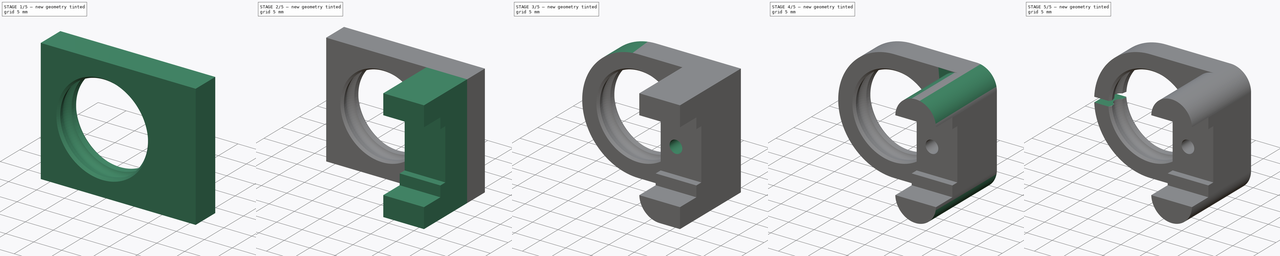
[diagram: build sequence overview — one tinted view per stage of 5, left to right]
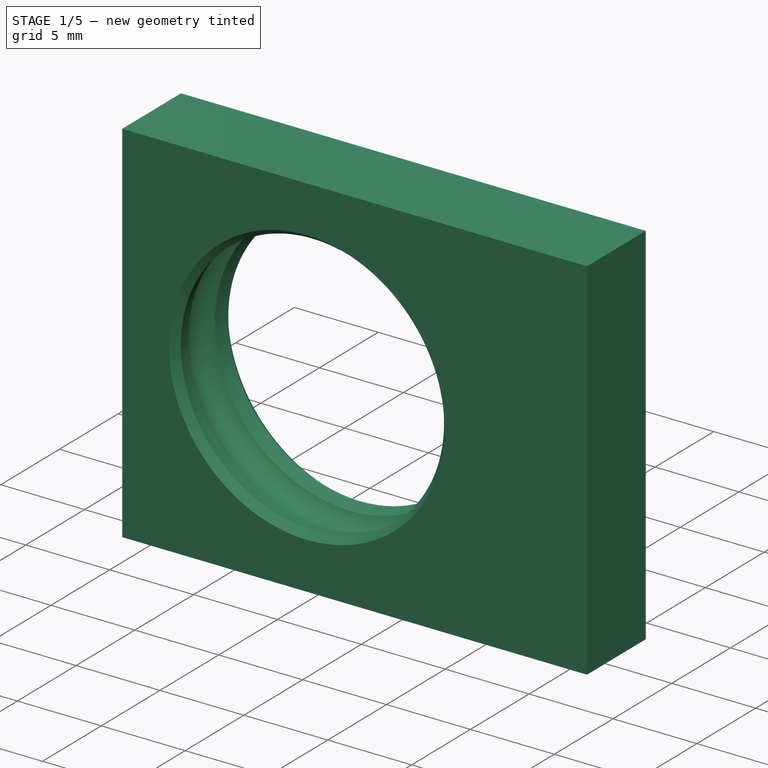
[diagram: stage 1 of 5 — iso view after this stage's code; geometry added in this stage tinted green]
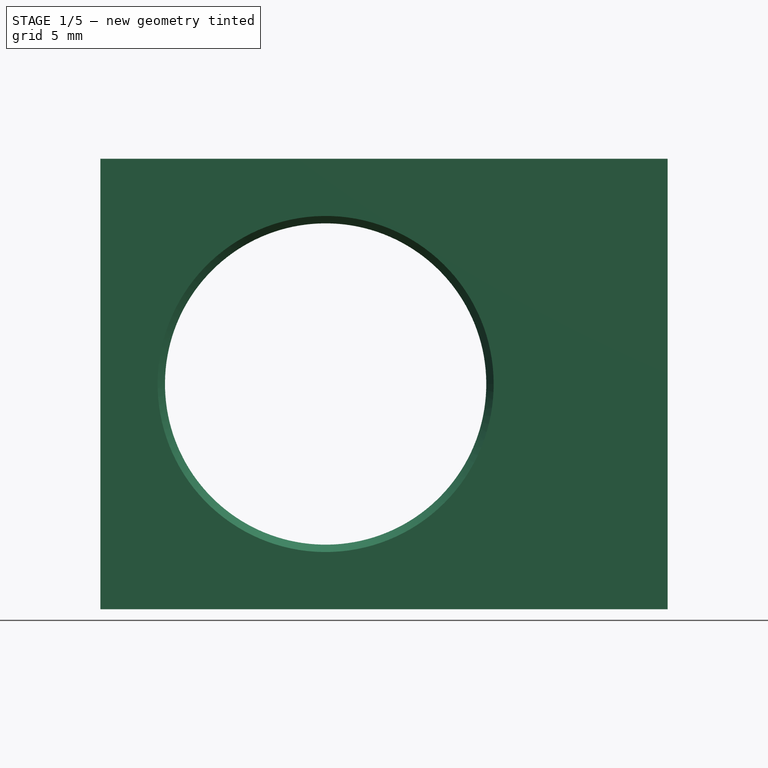
[diagram: stage 1 of 5 — front view after this stage's code; geometry added in this stage tinted green]
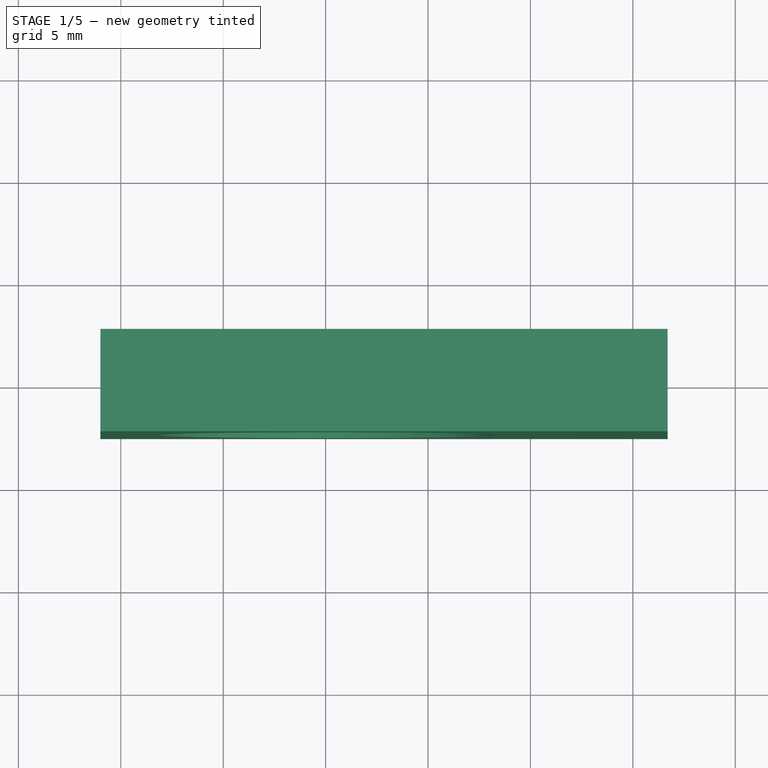
[diagram: stage 1 of 5 — top view after this stage's code; geometry added in this stage tinted green]
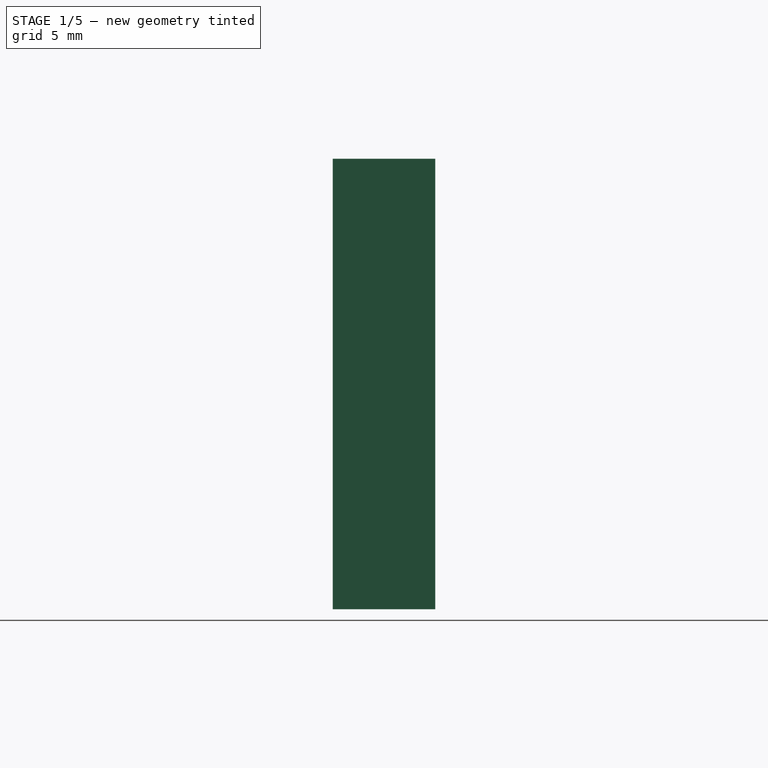
[diagram: stage 1 of 5 — right view after this stage's code; geometry added in this stage tinted green]
FCSTD DOCUMENT  (FreeCAD 0.15R4671 (Git))
Label: Kugelhalter_3D_810_2
License: All rights reserved
LicenseURL: http://de.wikipedia.org/wiki/Alle_Rechte_vorbehalten
objects: Sketcher::SketchObject×7, PartDesign::Fillet×6, PartDesign::Chamfer×5, PartDesign::Pocket×5, PartDesign::Revolution×1, PartDesign::Pad×1
note: 32 computed .brp shape members not serialized (recipe doc carries the construction recipe); baked Part::Feature solids carry a one-line shape summary decoded from their .brp

FEATURE [Sketcher::SketchObject] Sketch
  sketch-geometry (6):
    g0: LineSegment StartX=7.70454 StartY=2.5 StartZ=0 EndX=31 EndY=2.5 EndZ=0
    g1: LineSegment StartX=31 StartY=2.5 StartZ=0 EndX=31 EndY=-2.5 EndZ=0
    g2: LineSegment StartX=7.70454 StartY=-2.5 StartZ=0 EndX=31 EndY=-2.5 EndZ=0
    g3: ArcOfCircle CenterX=0 CenterY=0 CenterZ=0 NormalX=0 NormalY=0 NormalZ=1 Radius=8.1 StartAngle=5.96942 EndAngle=6.14266
    g4: ArcOfCircle CenterX=7.5 CenterY=0 CenterZ=0 NormalX=0 NormalY=0 NormalZ=1 Radius=1.24807 StartAngle=5.14227 EndAngle=7.4241
    g5: ArcOfCircle CenterX=0 CenterY=0 CenterZ=0 NormalX=0 NormalY=0 NormalZ=1 Radius=8.1 StartAngle=0.140526 EndAngle=0.313765
  constraints (16):
    c: Horizontal(g0)
    c: DistanceY(g-1,g0) = 2.5
    c: Vertical(g1)
    c: Coincident(g1,g0)
    c: DistanceY(g1) = -5
    c: Horizontal(g2)
    c: Coincident(g2,g1)
    c: Coincident(g3,g-1)
    c: Coincident(g5,g0)
    c: Coincident(g3,g2)
    c: DistanceY(g-1,g4) = 0
    c: DistanceX(g-1,g4) = 7.5
    c: Equal(g3,g5)
    c: Coincident(g3,g5)
    c: Coincident(g4,g5)
    c: Coincident(g4,g3)
FEATURE [PartDesign::Revolution] Revolution
  Angle = 360
  Axis = (0,1,0)
  Base = (0,0,0)
  ReferenceAxis = -> Sketch [V_Axis]
  Reversed = true
  Sketch = -> Sketch
FEATURE [PartDesign::Chamfer] Chamfer
  Base = -> Revolution [Edge5]
  Size = 0.5
FEATURE [PartDesign::Chamfer] Chamfer001
  Base = -> Chamfer [Edge9]
  Size = 0.5
FEATURE [Sketcher::SketchObject] Sketch001
  Placement = pos=(0,-2.5,0) rot=(1,0,0;1.5708rad)
  Support = -> Chamfer001 [Face5]
  sketch-geometry (8):
    g0: LineSegment StartX=-11 StartY=11 StartZ=0 EndX=16.7 EndY=11 EndZ=0
    g1: LineSegment StartX=16.7 StartY=11 StartZ=0 EndX=16.7 EndY=-11 EndZ=0
    g2: LineSegment StartX=16.7 StartY=-11 StartZ=0 EndX=-11 EndY=-11 EndZ=0
    g3: LineSegment StartX=-11 StartY=-11 StartZ=0 EndX=-11 EndY=11 EndZ=0
    g4: LineSegment StartX=-35 StartY=35 StartZ=0 EndX=35 EndY=35 EndZ=0
    g5: LineSegment StartX=35 StartY=35 StartZ=0 EndX=35 EndY=-35 EndZ=0
    g6: LineSegment StartX=35 StartY=-35 StartZ=0 EndX=-35 EndY=-35 EndZ=0
    g7: LineSegment StartX=-35 StartY=-35 StartZ=0 EndX=-35 EndY=35 EndZ=0
  constraints (24):
    c: Coincident(g0,g1)
    c: Coincident(g1,g2)
    c: Coincident(g2,g3)
    c: Coincident(g3,g0)
    c: Horizontal(g0)
    c: Horizontal(g2)
    c: Vertical(g1)
    c: Vertical(g3)
    c: Symmetric(g0,g2,g-1)
    c: DistanceY(g3) = 22
    c: DistanceX(g-1,g0) = -11
    c: DistanceX(g2) = -27.7
    c: Coincident(g4,g5)
    c: Coincident(g5,g6)
    c: Coincident(g6,g7)
    c: Coincident(g7,g4)
    c: Horizontal(g4)
    c: Horizontal(g6)
    c: Vertical(g5)
    c: Vertical(g7)
    c: Symmetric(g4,g4,g-2)
    c: Symmetric(g4,g6,g-1)
    c: DistanceX(g4) = 70
    c: DistanceY(g7) = 70
FEATURE [PartDesign::Pocket] Pocket
  Length = 5
  Sketch = -> Sketch001
  Type = 1
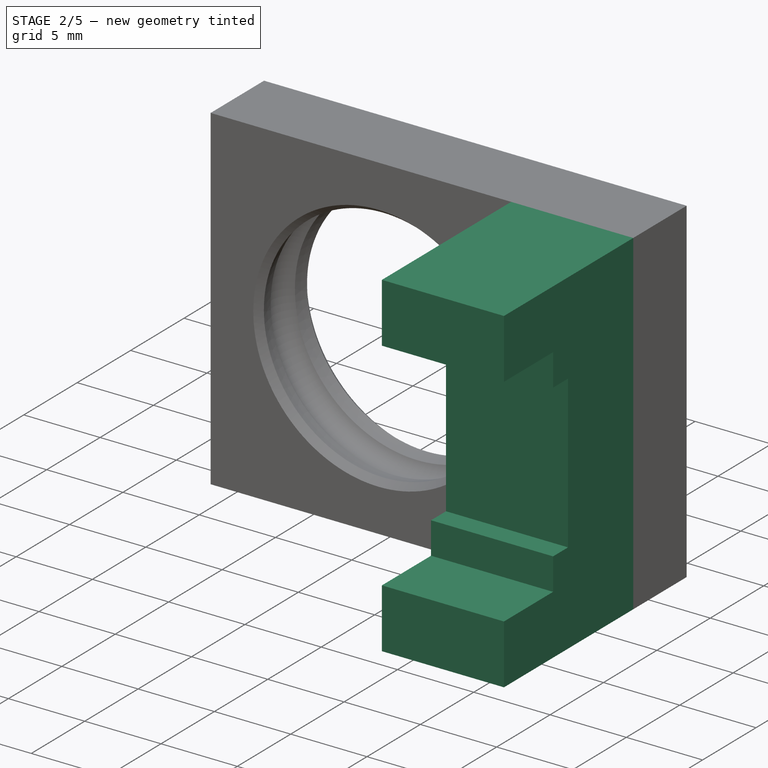
[diagram: stage 2 of 5 — iso view after this stage's code; geometry added in this stage tinted green]
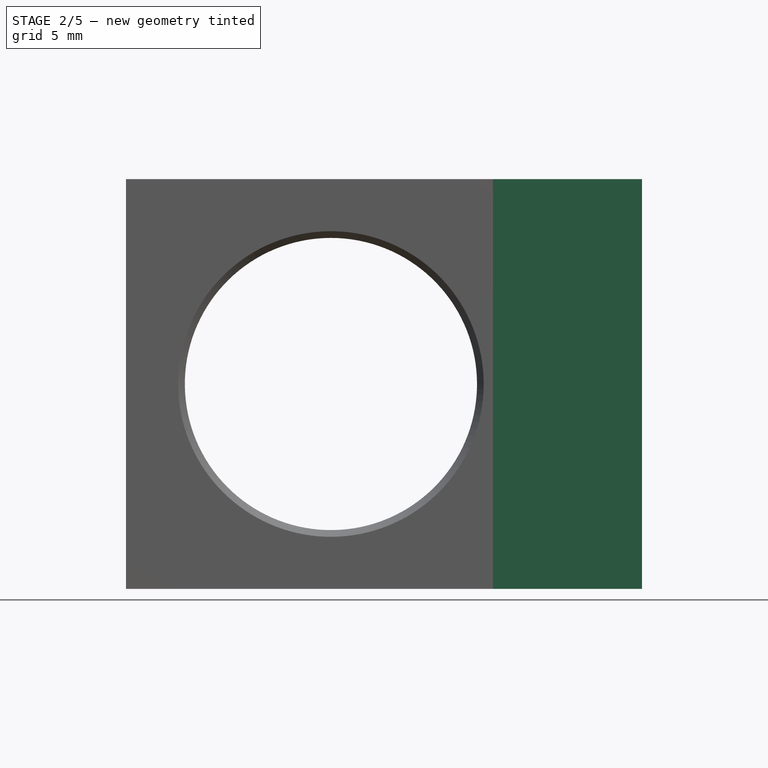
[diagram: stage 2 of 5 — front view after this stage's code; geometry added in this stage tinted green]
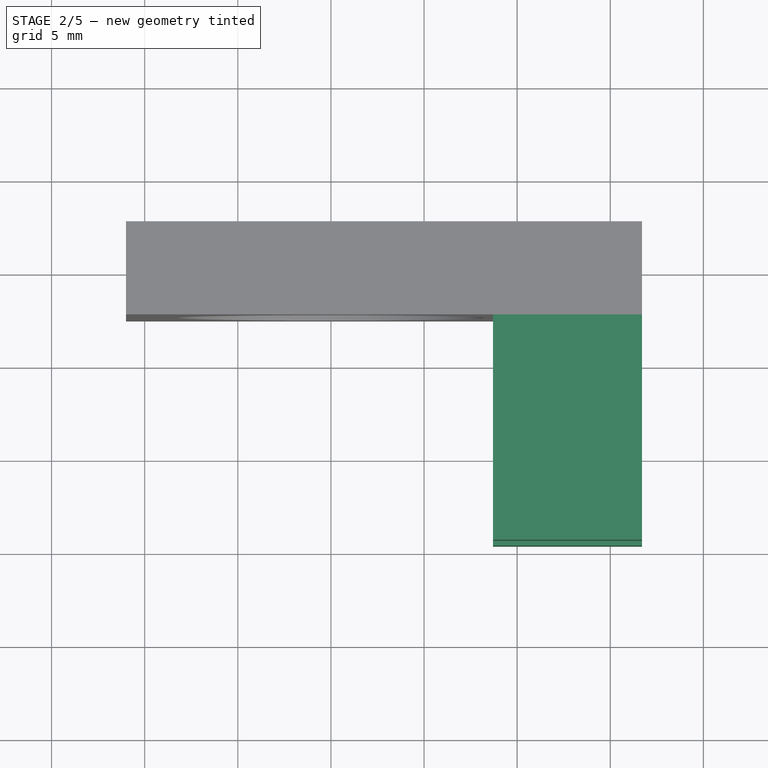
[diagram: stage 2 of 5 — top view after this stage's code; geometry added in this stage tinted green]
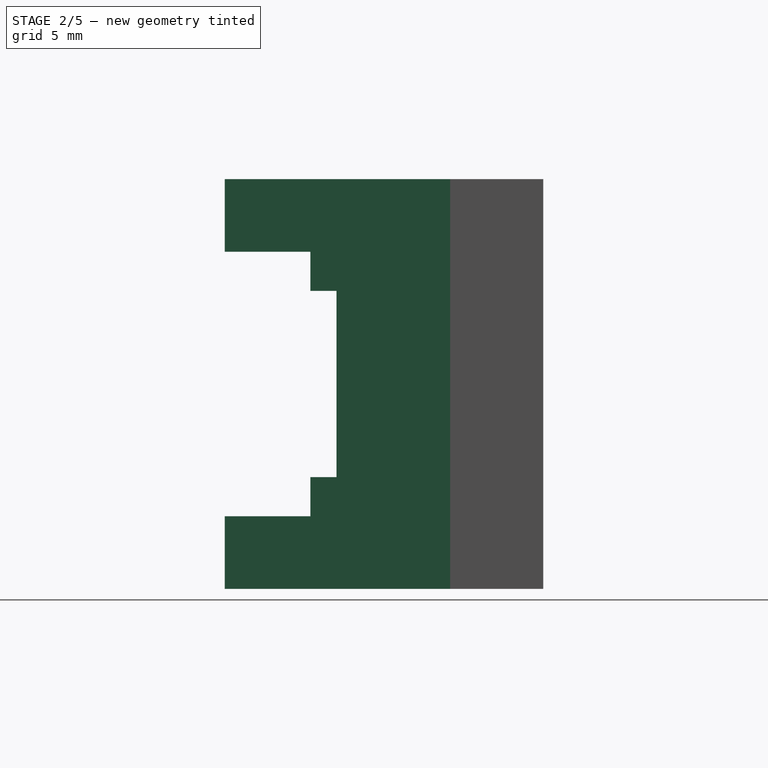
[diagram: stage 2 of 5 — right view after this stage's code; geometry added in this stage tinted green]
FEATURE [Sketcher::SketchObject] Sketch002
  Placement = pos=(0,-2.5,0) rot=(1,0,0;1.5708rad)
  Support = -> Pocket [Face7]
  sketch-geometry (4):
    g0: LineSegment StartX=8.7 StartY=11 StartZ=0 EndX=16.7 EndY=11 EndZ=0
    g1: LineSegment StartX=16.7 StartY=11 StartZ=0 EndX=16.7 EndY=-11 EndZ=0
    g2: LineSegment StartX=16.7 StartY=-11 StartZ=0 EndX=8.7 EndY=-11 EndZ=0
    g3: LineSegment StartX=8.7 StartY=-11 StartZ=0 EndX=8.7 EndY=11 EndZ=0
  constraints (12):
    c: Coincident(g0,g1)
    c: Coincident(g1,g2)
    c: Coincident(g2,g3)
    c: Coincident(g3,g0)
    c: Horizontal(g0)
    c: Horizontal(g2)
    c: Vertical(g1)
    c: Vertical(g3)
    c: Symmetric(g0,g2,g-1)
    c: DistanceY(g1) = -22
    c: DistanceX(g0) = 8
    c: DistanceX(g-1,g0) = 8.7
FEATURE [PartDesign::Pad] Pad
  Length = 12.1
  Length2 = 100
  Sketch = -> Sketch002
  Type = 0
FEATURE [Sketcher::SketchObject] Sketch003
  Placement = pos=(0,-14.6,0) rot=(1,0,0;1.5708rad)
  Support = -> Pad [Face12]
  sketch-geometry (4):
    g0: LineSegment StartX=8.7 StartY=7.1 StartZ=0 EndX=16.7 EndY=7.1 EndZ=0
    g1: LineSegment StartX=16.7 StartY=7.1 StartZ=0 EndX=16.7 EndY=-7.1 EndZ=0
    g2: LineSegment StartX=16.7 StartY=-7.1 StartZ=0 EndX=8.7 EndY=-7.1 EndZ=0
    g3: LineSegment StartX=8.7 StartY=-7.1 StartZ=0 EndX=8.7 EndY=7.1 EndZ=0
  constraints (12):
    c: Coincident(g0,g1)
    c: Coincident(g1,g2)
    c: Coincident(g2,g3)
    c: Coincident(g3,g0)
    c: Horizontal(g0)
    c: Horizontal(g2)
    c: Vertical(g1)
    c: Vertical(g3)
    c: Symmetric(g0,g2,g-1)
    c: DistanceY(g3) = 14.2
    c: DistanceX(g0) = 8
    c: DistanceX(g-1,g0) = 8.7
FEATURE [PartDesign::Pocket] Pocket001
  Length = 4.6
  Sketch = -> Sketch003
  Type = 0
FEATURE [Sketcher::SketchObject] Sketch004
  Placement = pos=(0,-10,0) rot=(1,0,0;1.5708rad)
  Support = -> Pocket001 [Face14]
  sketch-geometry (4):
    g0: LineSegment StartX=8.7 StartY=5 StartZ=0 EndX=16.7 EndY=5 EndZ=0
    g1: LineSegment StartX=16.7 StartY=5 StartZ=0 EndX=16.7 EndY=-5 EndZ=0
    g2: LineSegment StartX=16.7 StartY=-5 StartZ=0 EndX=8.7 EndY=-5 EndZ=0
    g3: LineSegment StartX=8.7 StartY=-5 StartZ=0 EndX=8.7 EndY=5 EndZ=0
  constraints (12):
    c: Coincident(g0,g1)
    c: Coincident(g1,g2)
    c: Coincident(g2,g3)
    c: Coincident(g3,g0)
    c: Horizontal(g0)
    c: Horizontal(g2)
    c: Vertical(g1)
    c: Vertical(g3)
    c: Symmetric(g0,g2,g-1)
    c: DistanceY(g3) = 10
    c: DistanceX(g0) = 8
    c: DistanceX(g-1,g0) = 8.7
FEATURE [PartDesign::Pocket] Pocket002
  Length = 1.4
  Sketch = -> Sketch004
  Type = 0
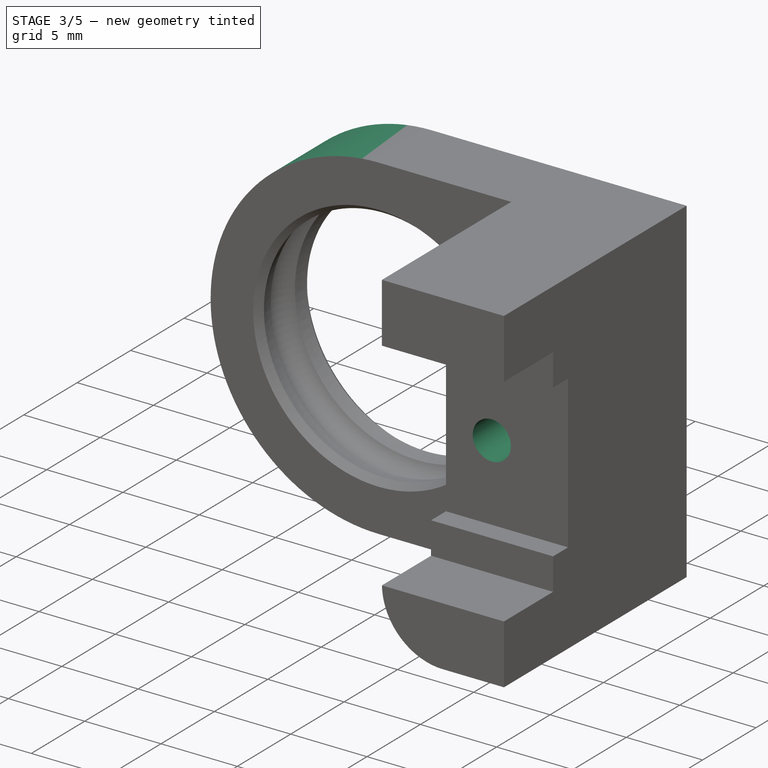
[diagram: stage 3 of 5 — iso view after this stage's code; geometry added in this stage tinted green]
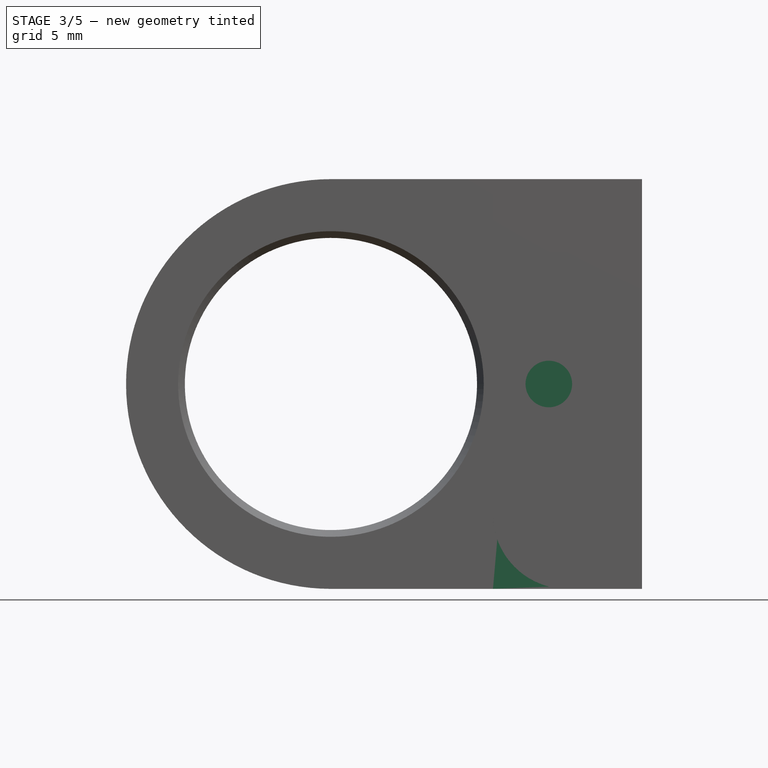
[diagram: stage 3 of 5 — front view after this stage's code; geometry added in this stage tinted green]
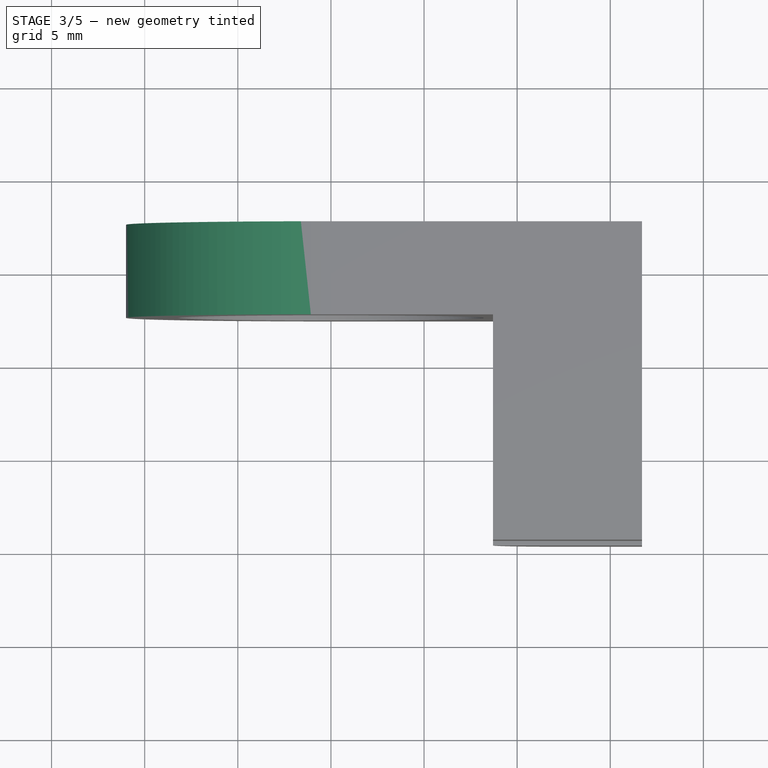
[diagram: stage 3 of 5 — top view after this stage's code; geometry added in this stage tinted green]
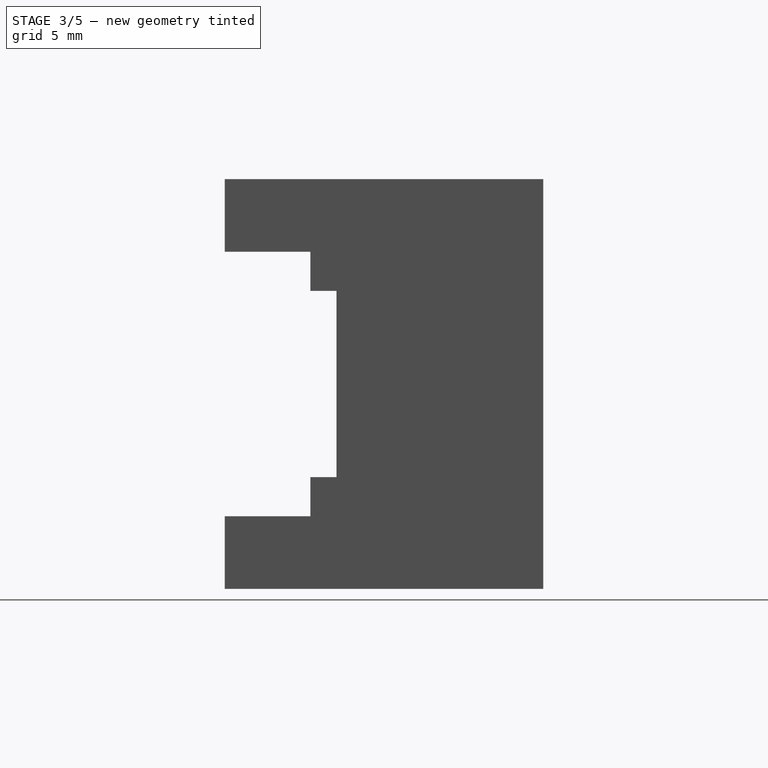
[diagram: stage 3 of 5 — right view after this stage's code; geometry added in this stage tinted green]
FEATURE [Sketcher::SketchObject] Sketch005
  Placement = pos=(0,-8.6,0) rot=(1,0,0;1.5708rad)
  Support = -> Pocket002 [Face16]
  sketch-geometry (1):
    g0: Circle CenterX=11.7 CenterY=0 CenterZ=0 NormalX=0 NormalY=0 NormalZ=1 Radius=1.25
  constraints (3):
    c: DistanceY(g-1,g0) = 0
    c: DistanceX(g-1,g0) = 11.7
    c: Radius(g0) = 1.25
FEATURE [PartDesign::Pocket] Pocket003
  Length = 10
  Sketch = -> Sketch005
  Type = 0
FEATURE [PartDesign::Fillet] Fillet
  Base = -> Pocket003 [Edge10]
  Radius = 10.999
FEATURE [PartDesign::Fillet] Fillet001
  Base = -> Fillet [Edge16]
  Radius = 10.999
FEATURE [PartDesign::Fillet] Fillet002
  Base = -> Fillet001 [Edge28]
  Radius = 3.999
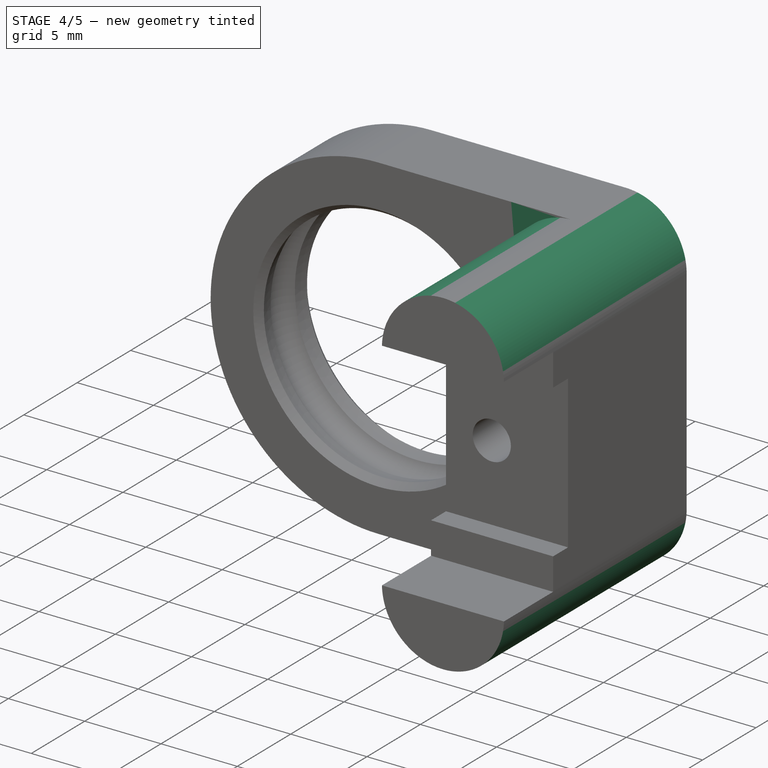
[diagram: stage 4 of 5 — iso view after this stage's code; geometry added in this stage tinted green]
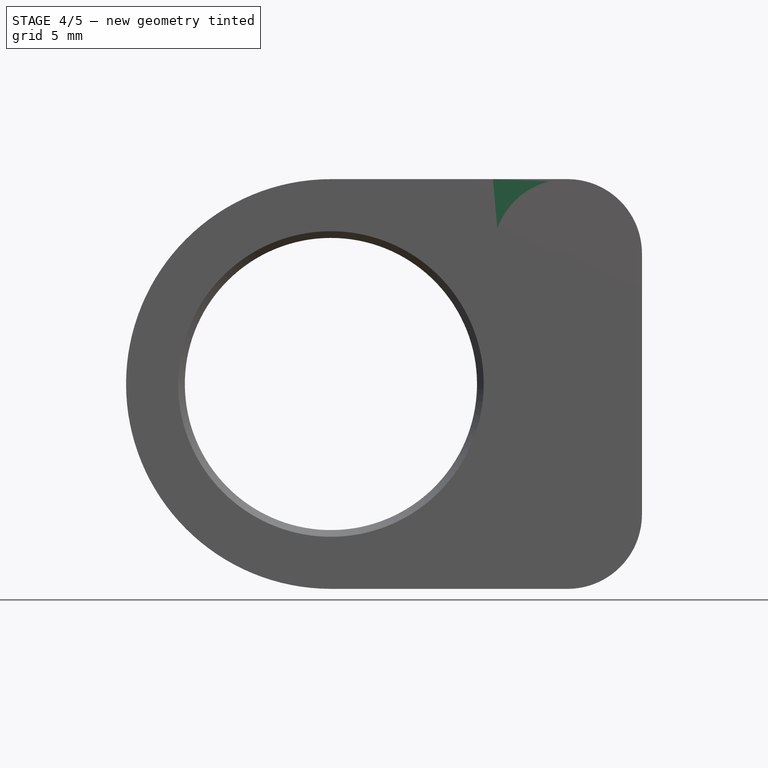
[diagram: stage 4 of 5 — front view after this stage's code; geometry added in this stage tinted green]
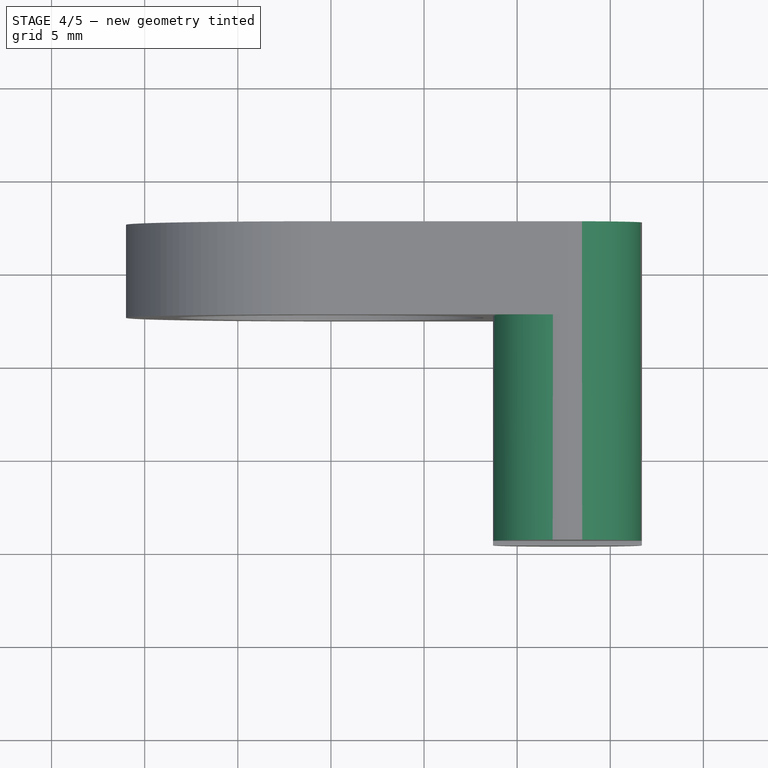
[diagram: stage 4 of 5 — top view after this stage's code; geometry added in this stage tinted green]
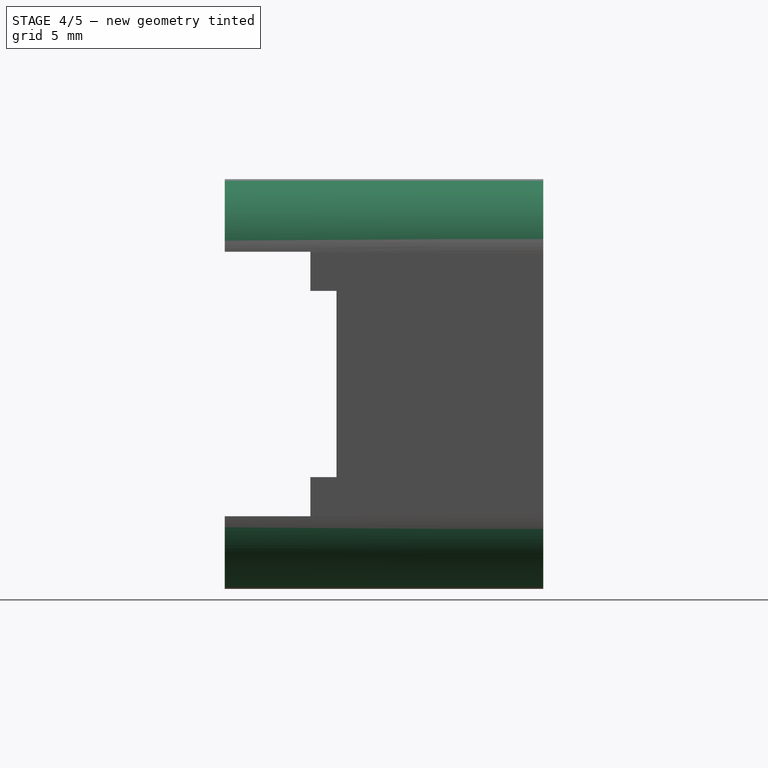
[diagram: stage 4 of 5 — right view after this stage's code; geometry added in this stage tinted green]
FEATURE [PartDesign::Fillet] Fillet003
  Base = -> Fillet002 [Edge8]
  Radius = 3.999
FEATURE [PartDesign::Fillet] Fillet004
  Base = -> Fillet003 [Edge38]
  Radius = 3.999
FEATURE [PartDesign::Fillet] Fillet005
  Base = -> Fillet004 [Edge55]
  Radius = 3.999
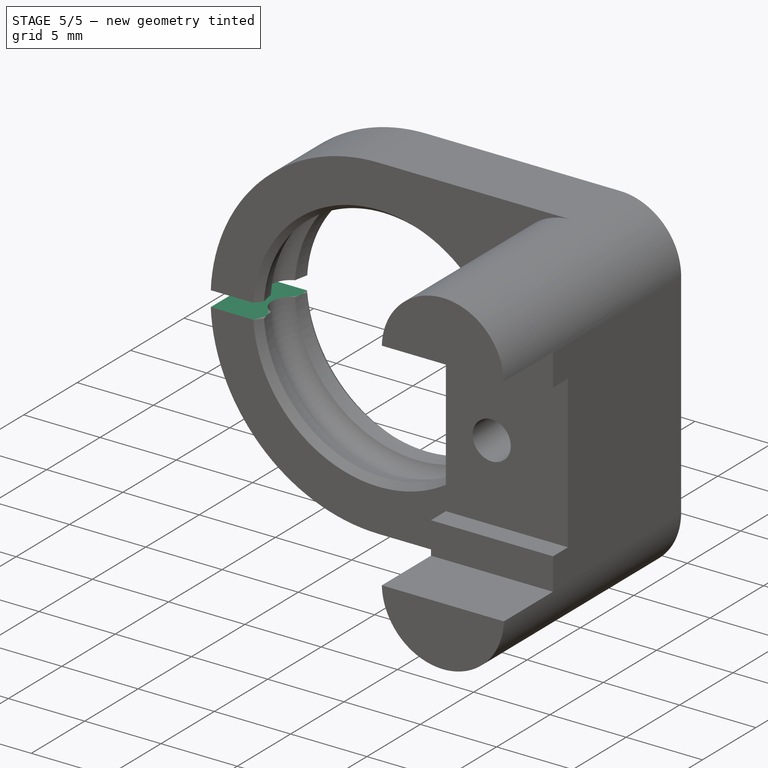
[diagram: stage 5 of 5 — iso view after this stage's code; geometry added in this stage tinted green]
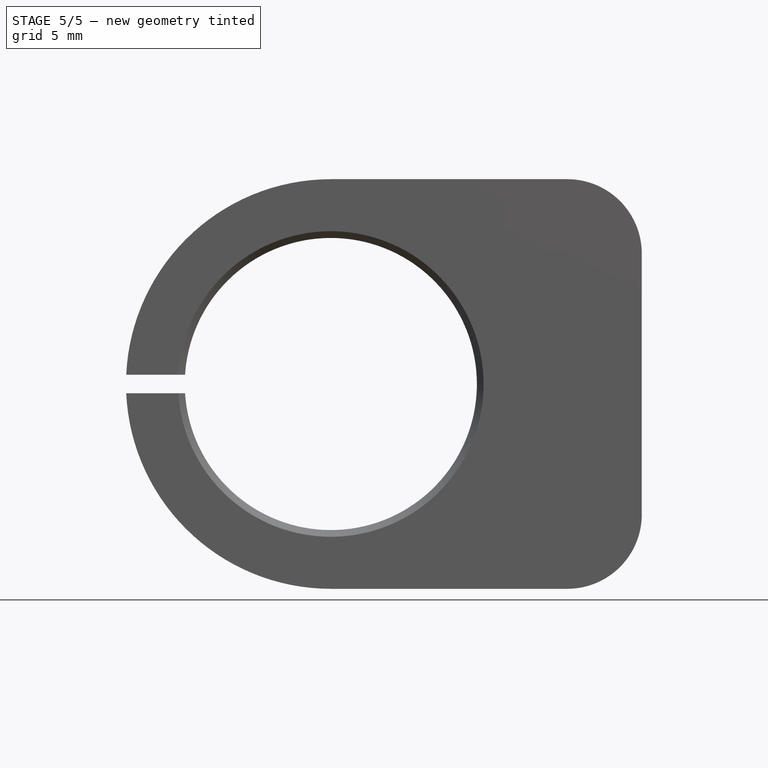
[diagram: stage 5 of 5 — front view after this stage's code; geometry added in this stage tinted green]
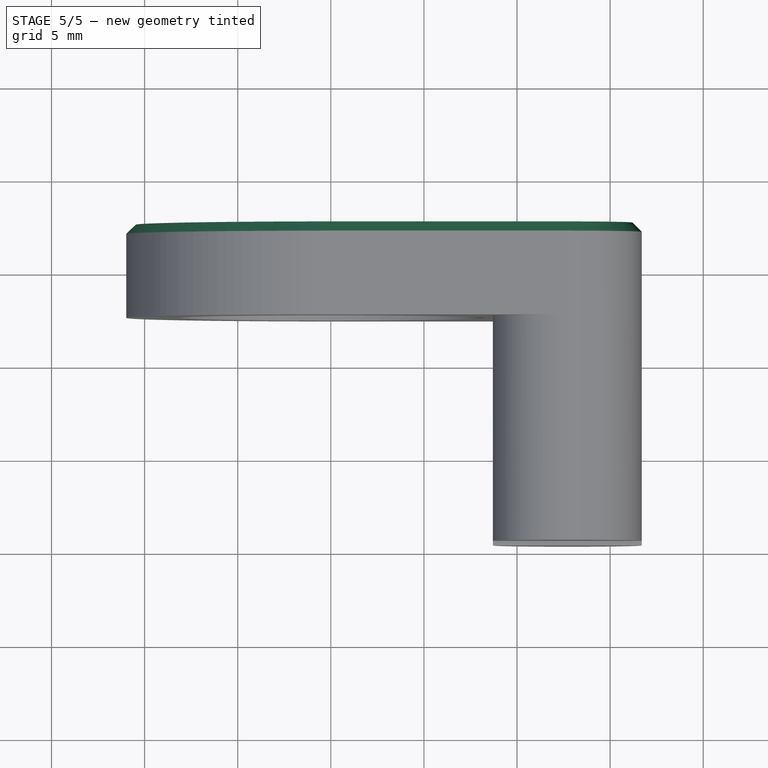
[diagram: stage 5 of 5 — top view after this stage's code; geometry added in this stage tinted green]
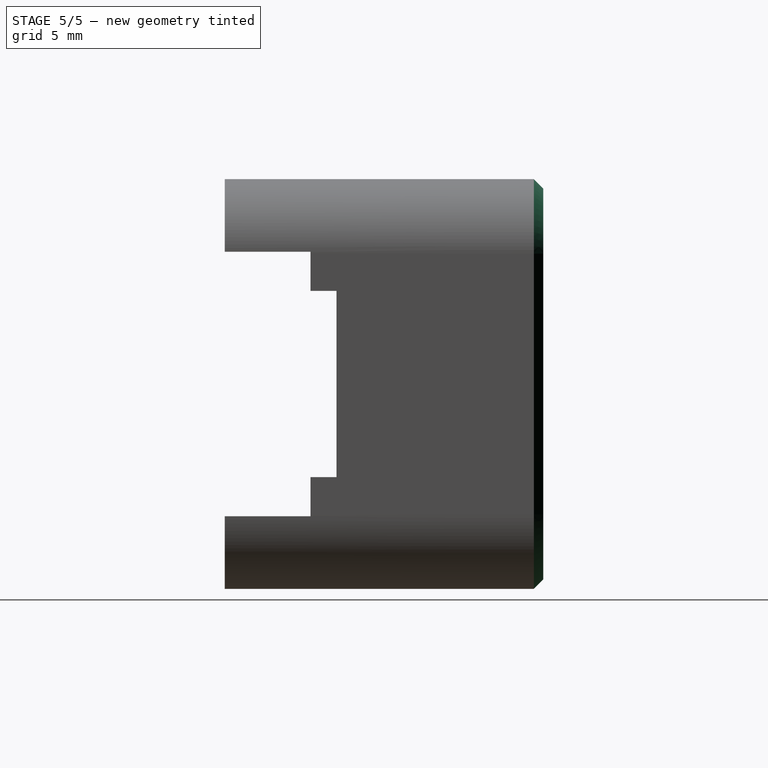
[diagram: stage 5 of 5 — right view after this stage's code; geometry added in this stage tinted green]
FEATURE [PartDesign::Chamfer] Chamfer002
  Base = -> Fillet005 [Edge22]
  Size = 0.5
FEATURE [Sketcher::SketchObject] Sketch006
  Placement = pos=(0,-2.5,0) rot=(1,0,0;1.5708rad)
  Support = -> Chamfer002 [Face6]
  sketch-geometry (4):
    g0: LineSegment StartX=-15 StartY=0.5 StartZ=0 EndX=-5 EndY=0.5 EndZ=0
    g1: LineSegment StartX=-5 StartY=0.5 StartZ=0 EndX=-5 EndY=-0.5 EndZ=0
    g2: LineSegment StartX=-5 StartY=-0.5 StartZ=0 EndX=-15 EndY=-0.5 EndZ=0
    g3: LineSegment StartX=-15 StartY=-0.5 StartZ=0 EndX=-15 EndY=0.5 EndZ=0
  constraints (12):
    c: Coincident(g0,g1)
    c: Coincident(g1,g2)
    c: Coincident(g2,g3)
    c: Coincident(g3,g0)
    c: Horizontal(g0)
    c: Horizontal(g2)
    c: Vertical(g1)
    c: Vertical(g3)
    c: Symmetric(g0,g2,g-1)
    c: DistanceY(g3) = 1
    c: DistanceX(g-1,g1) = -5
    c: DistanceX(g2) = -10
FEATURE [PartDesign::Pocket] Pocket004
  Length = 6
  Sketch = -> Sketch006
  Type = 0
FEATURE [PartDesign::Chamfer] Chamfer003
  Base = -> Pocket004 [Edge43]
  Size = 0.3
FEATURE [PartDesign::Chamfer] Chamfer004
  Base = -> Chamfer003 [Edge5]
  Size = 0.3
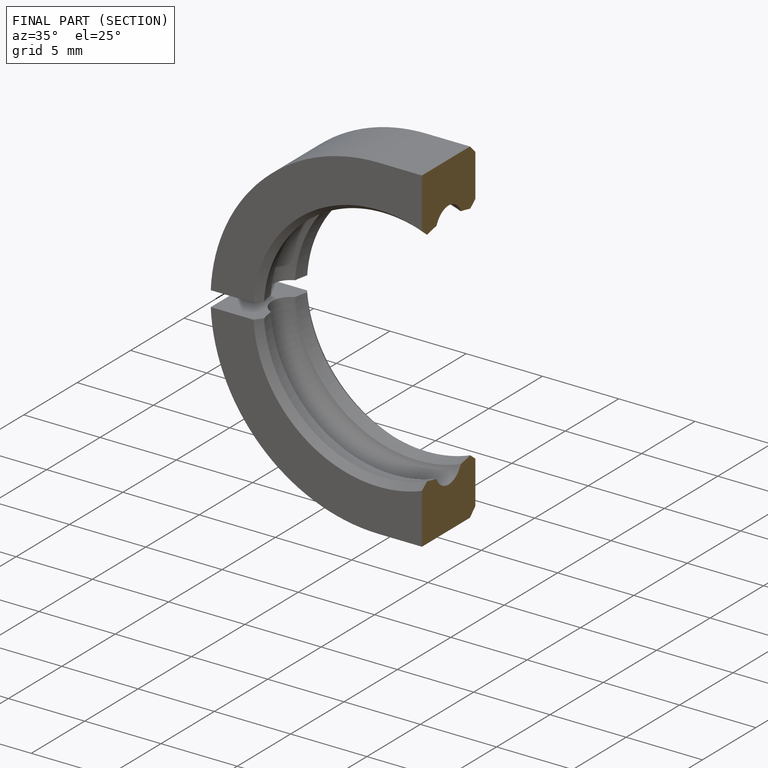
[diagram: finished part — half-section view (interior)]
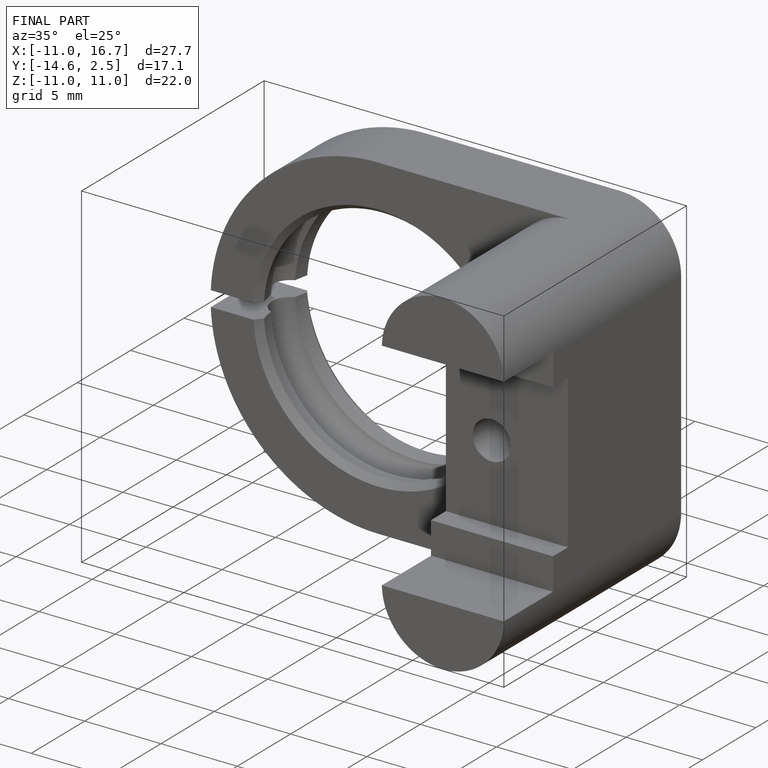
[diagram: finished part — iso view with bounding-box wireframe]
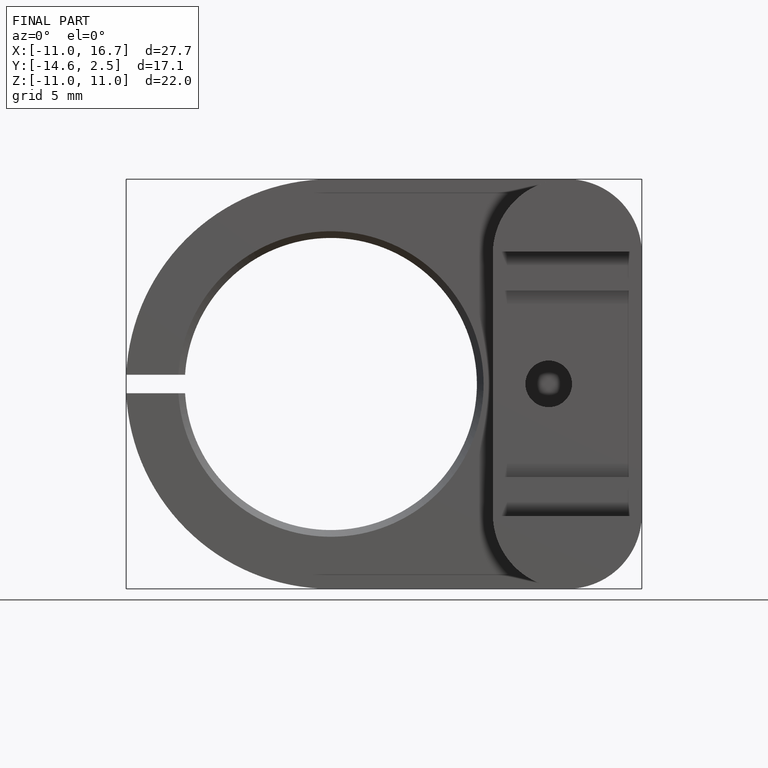
[diagram: finished part — front view with bounding-box wireframe]
